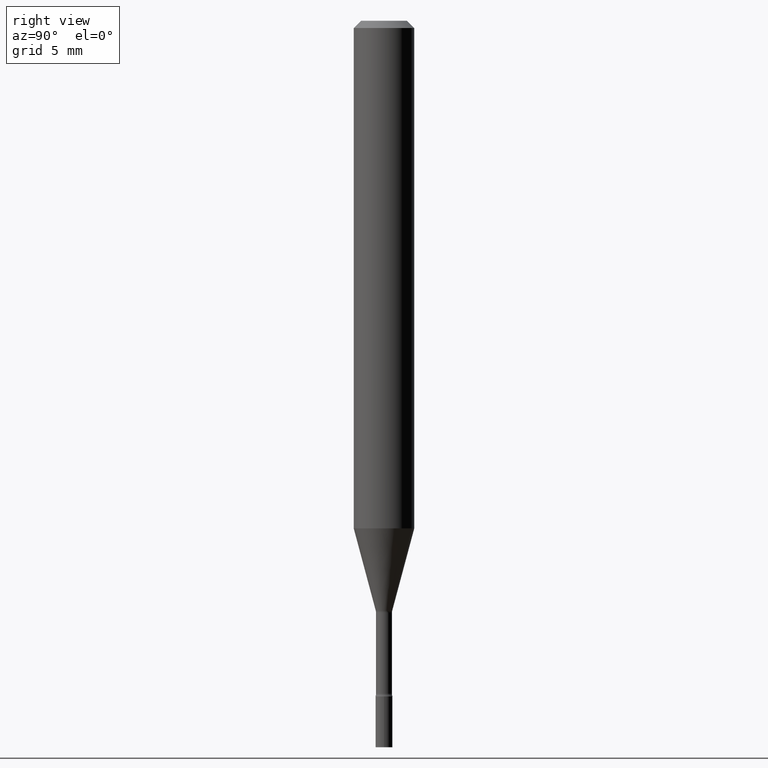
[diagram: clean part render]
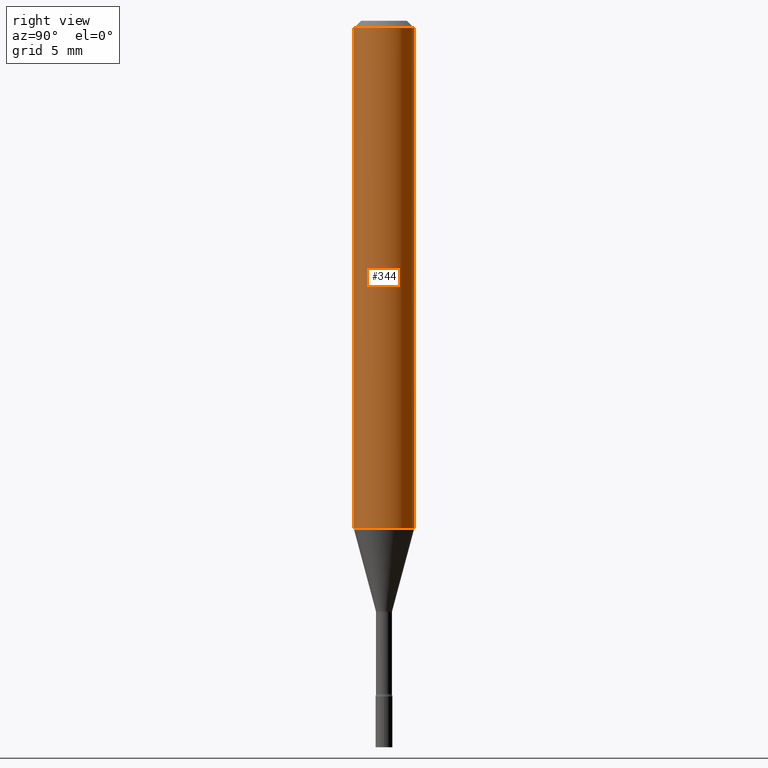
[diagram: same view with one face highlighted and labeled with its STEP entity id]
A machine part, right view. The second image highlights one B-rep face of the part: STEP entity #344.
In plain terms, the highlighted cylindrical surface (edge-blend (fillet) strip) has radius 1.5875 mm, axis along (-0, 0, 1).
Its self-contained STEP definition (entity closure, byte-faithful):
#10 = LINE ( 'NONE', #336, #354 ) ;
#27 = EDGE_CURVE ( 'NONE', #374, #390, #50, .T. ) ;
#29 = EDGE_LOOP ( 'NONE', ( #273, #318, #138, #340 ) ) ;
#33 = DIRECTION ( 'NONE',  ( -6.982962677686265922E-15, -1.000000000000000000, 3.491514762482098518E-15 ) ) ;
#47 = CARTESIAN_POINT ( 'NONE',  ( -4.364351673553916201E-16, -0.06250000000000000000, 2.182196726551311574E-16 ) ) ;
#50 = LINE ( 'NONE', #47, #63 ) ;
#63 = VECTOR ( 'NONE', #329, 39.37007874015748143 ) ;
#80 = CARTESIAN_POINT ( 'NONE',  ( 4.440892098500883528E-16, 0.06249999999999993755, -0.01500000000000024751 ) ) ;
#107 = CARTESIAN_POINT ( 'NONE',  ( -4.364351673553912750E-16, -0.06250000000000005551, -0.01499999999999981209 ) ) ;
#109 = VERTEX_POINT ( 'NONE', #245 ) ;
#116 = DIRECTION ( 'NONE',  ( -2.445445466582800548E-29, 3.491514762482098518E-15, 1.000000000000000000 ) ) ;
#137 = DIRECTION ( 'NONE',  ( -6.982962677686265922E-15, -1.000000000000000000, 3.483106191921935554E-15 ) ) ;
#138 = ORIENTED_EDGE ( 'NONE', *, *, #233, .F. ) ;
#152 = CARTESIAN_POINT ( 'NONE',  ( -4.364351673553661300E-16, -0.06250000000000369149, -1.048139060311453319 ) ) ;
#156 = FACE_OUTER_BOUND ( 'NONE', #29, .T. ) ;
#183 = CARTESIAN_POINT ( 'NONE',  ( 3.668168199874207899E-31, -5.237272143723158550E-17, -0.01500000000000003067 ) ) ;
#233 = EDGE_CURVE ( 'NONE', #390, #475, #375, .T. ) ;
#236 = DIRECTION ( 'NONE',  ( -6.982962677686265922E-15, -1.000000000000000000, 4.370956789862821150E-15 ) ) ;
#245 = CARTESIAN_POINT ( 'NONE',  ( 4.440892098500881555E-16, 0.06249999999999632933, -1.048139060311453985 ) ) ;
#254 = DIRECTION ( 'NONE',  ( -2.445445466582800548E-29, 3.491514762482098518E-15, 1.000000000000000000 ) ) ;
#270 = AXIS2_PLACEMENT_3D ( 'NONE', #183, #254, #137 ) ;
#272 = CYLINDRICAL_SURFACE ( 'NONE', #495, 0.06250000000000000000 ) ;
#273 = ORIENTED_EDGE ( 'NONE', *, *, #468, .T. ) ;
#277 = CARTESIAN_POINT ( 'NONE',  ( 0.000000000000000000, 0.000000000000000000, 0.000000000000000000 ) ) ;
#314 = DIRECTION ( 'NONE',  ( -2.445445466582800548E-29, 3.491514762482098518E-15, 1.000000000000000000 ) ) ;
#318 = ORIENTED_EDGE ( 'NONE', *, *, #323, .T. ) ;
#323 = EDGE_CURVE ( 'NONE', #109, #475, #10, .T. ) ;
#329 = DIRECTION ( 'NONE',  ( -2.445445466582800548E-29, 3.491514762482098912E-15, 1.000000000000000000 ) ) ;
#336 = CARTESIAN_POINT ( 'NONE',  ( 4.440892098500625669E-16, 0.06250000000000000000, -2.182196726551311574E-16 ) ) ;
#340 = ORIENTED_EDGE ( 'NONE', *, *, #27, .F. ) ;
#344 = ADVANCED_FACE ( 'NONE', ( #156 ), #272, .T. ) ;
#354 = VECTOR ( 'NONE', #380, 39.37007874015748143 ) ;
#374 = VERTEX_POINT ( 'NONE', #152 ) ;
#375 = CIRCLE ( 'NONE', #270, 0.06250000000000000000 ) ;
#380 = DIRECTION ( 'NONE',  ( -2.445445466582800548E-29, 3.491514762482098912E-15, 1.000000000000000000 ) ) ;
#390 = VERTEX_POINT ( 'NONE', #107 ) ;
#447 = CIRCLE ( 'NONE', #517, 0.06250000000000000000 ) ;
#468 = EDGE_CURVE ( 'NONE', #374, #109, #447, .T. ) ;
#474 = CARTESIAN_POINT ( 'NONE',  ( 2.563166913387000657E-29, -3.659593002211555203E-15, -1.048139060311453763 ) ) ;
#475 = VERTEX_POINT ( 'NONE', #80 ) ;
#495 = AXIS2_PLACEMENT_3D ( 'NONE', #277, #314, #33 ) ;
#517 = AXIS2_PLACEMENT_3D ( 'NONE', #474, #116, #236 ) ;